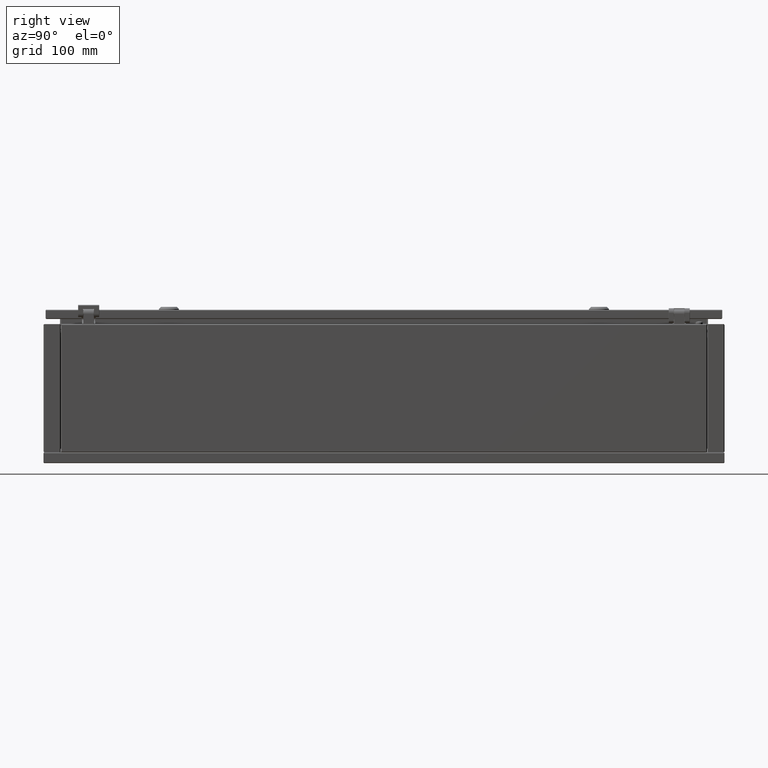
[diagram: clean part render]
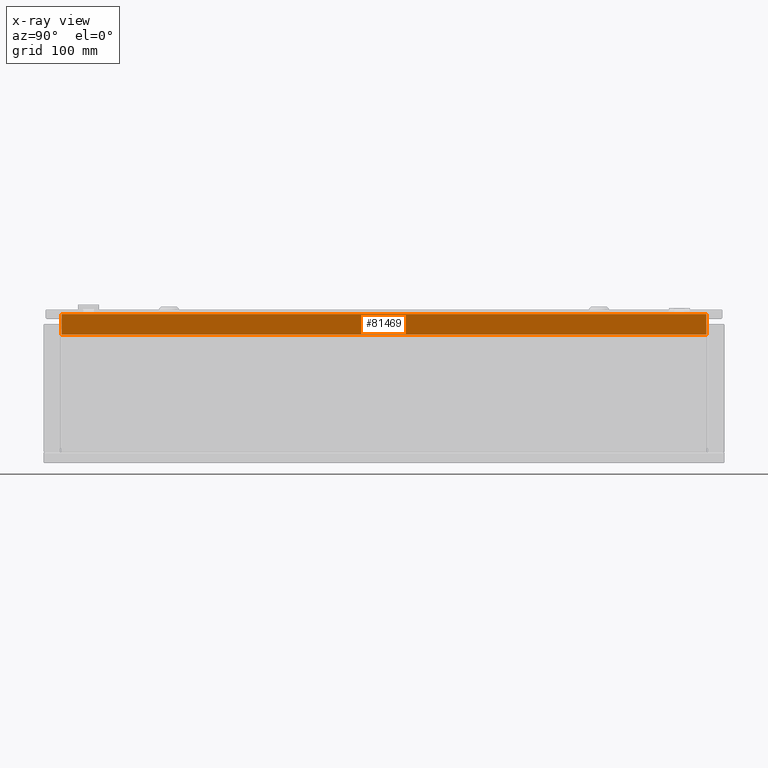
[diagram: x-ray — body ghosted, one internal face saturated and labeled with its STEP entity id]
A machine part, right view, then the same camera in x-ray: the body is ghosted and one INTERNAL B-rep face — a face not visible from any outside direction — is saturated and labeled: STEP entity #81469.
In plain terms, the highlighted planar face has unit normal (-1, 0, 0).
Its self-contained STEP definition (entity closure, byte-faithful):
#3224 = ORIENTED_EDGE ( 'NONE', *, *, #47080, .F. ) ;
#6804 = LINE ( 'NONE', #58238, #8933 ) ;
#8129 = CARTESIAN_POINT ( 'NONE',  ( 125.0000000000013900, 449.7499999999934600, 178.0500000000000100 ) ) ;
#8428 = CARTESIAN_POINT ( 'NONE',  ( 125.0000000000013900, -6.827871601444710300E-012, 207.0000000000000000 ) ) ;
#8933 = VECTOR ( 'NONE', #84596, 1000.000000000000000 ) ;
#10597 = DIRECTION ( 'NONE',  ( -1.000000000000000000, 1.665334536937775000E-016, 3.965082230804130600E-015 ) ) ;
#10987 = ORIENTED_EDGE ( 'NONE', *, *, #29640, .F. ) ;
#15882 = VERTEX_POINT ( 'NONE', #8129 ) ;
#16208 = VERTEX_POINT ( 'NONE', #27052 ) ;
#16722 = ORIENTED_EDGE ( 'NONE', *, *, #71244, .F. ) ;
#23066 = PLANE ( 'NONE',  #34564 ) ;
#23351 = CARTESIAN_POINT ( 'NONE',  ( 125.0000000000013900, -6.827871601444710300E-012, 192.5250000000000100 ) ) ;
#27052 = CARTESIAN_POINT ( 'NONE',  ( 125.0000000000011900, -449.7500000000069900, 178.0500000000000100 ) ) ;
#28295 = EDGE_LOOP ( 'NONE', ( #16722, #41613, #3224, #10987 ) ) ;
#29640 = EDGE_CURVE ( 'NONE', #15882, #71368, #6804, .T. ) ;
#34161 = VECTOR ( 'NONE', #84279, 1000.000000000000000 ) ;
#34564 = AXIS2_PLACEMENT_3D ( 'NONE', #23351, #10597, #78381 ) ;
#35471 = DIRECTION ( 'NONE',  ( -1.665334536937764900E-016, -1.000000000000000000, 1.935523262879189800E-016 ) ) ;
#37026 = VECTOR ( 'NONE', #35471, 1000.000000000000000 ) ;
#40487 = VERTEX_POINT ( 'NONE', #54397 ) ;
#41613 = ORIENTED_EDGE ( 'NONE', *, *, #72719, .F. ) ;
#43967 = DIRECTION ( 'NONE',  ( -3.954062174942385400E-015, -2.861111829207725000E-016, -1.000000000000000000 ) ) ;
#44499 = LINE ( 'NONE', #8428, #37026 ) ;
#47080 = EDGE_CURVE ( 'NONE', #71368, #40487, #44499, .T. ) ;
#54397 = CARTESIAN_POINT ( 'NONE',  ( 125.0000000000013900, -449.7500000000069900, 207.0000000000000000 ) ) ;
#56589 = LINE ( 'NONE', #84871, #34161 ) ;
#58238 = CARTESIAN_POINT ( 'NONE',  ( 125.0000000000013900, 449.7499999999934600, 192.5250000000000100 ) ) ;
#58811 = CARTESIAN_POINT ( 'NONE',  ( 125.0000000000016100, 449.7499999999934600, 207.0000000000000000 ) ) ;
#64449 = CARTESIAN_POINT ( 'NONE',  ( 125.0000000000011900, -449.7500000000069900, 192.5250000000000100 ) ) ;
#70878 = FACE_OUTER_BOUND ( 'NONE', #28295, .T. ) ;
#71244 = EDGE_CURVE ( 'NONE', #16208, #15882, #56589, .T. ) ;
#71368 = VERTEX_POINT ( 'NONE', #58811 ) ;
#72210 = LINE ( 'NONE', #64449, #76468 ) ;
#72719 = EDGE_CURVE ( 'NONE', #40487, #16208, #72210, .T. ) ;
#76468 = VECTOR ( 'NONE', #43967, 1000.000000000000000 ) ;
#78381 = DIRECTION ( 'NONE',  ( -1.665334536937769800E-016, -1.000000000000000000, 1.318389841742359800E-016 ) ) ;
#81469 = ADVANCED_FACE ( 'NONE', ( #70878 ), #23066, .T. ) ;
#84279 = DIRECTION ( 'NONE',  ( 1.665334536937764900E-016, 1.000000000000000000, -1.935523262879189800E-016 ) ) ;
#84596 = DIRECTION ( 'NONE',  ( 3.954062174942385400E-015, 2.861111829207725000E-016, 1.000000000000000000 ) ) ;
#84871 = CARTESIAN_POINT ( 'NONE',  ( 125.0000000000013900, -6.827871601444710300E-012, 178.0500000000000100 ) ) ;